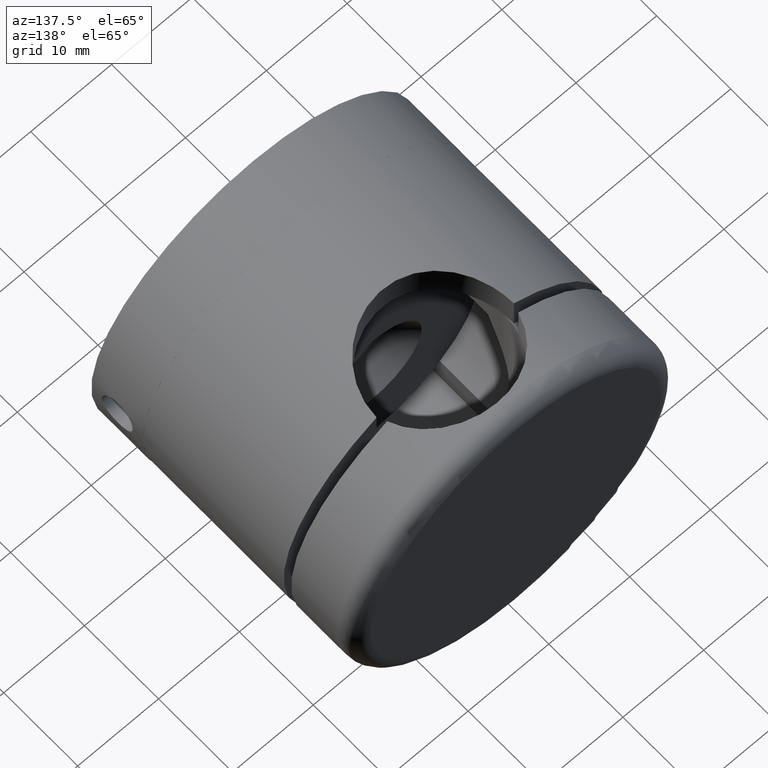
[diagram: clean part render]
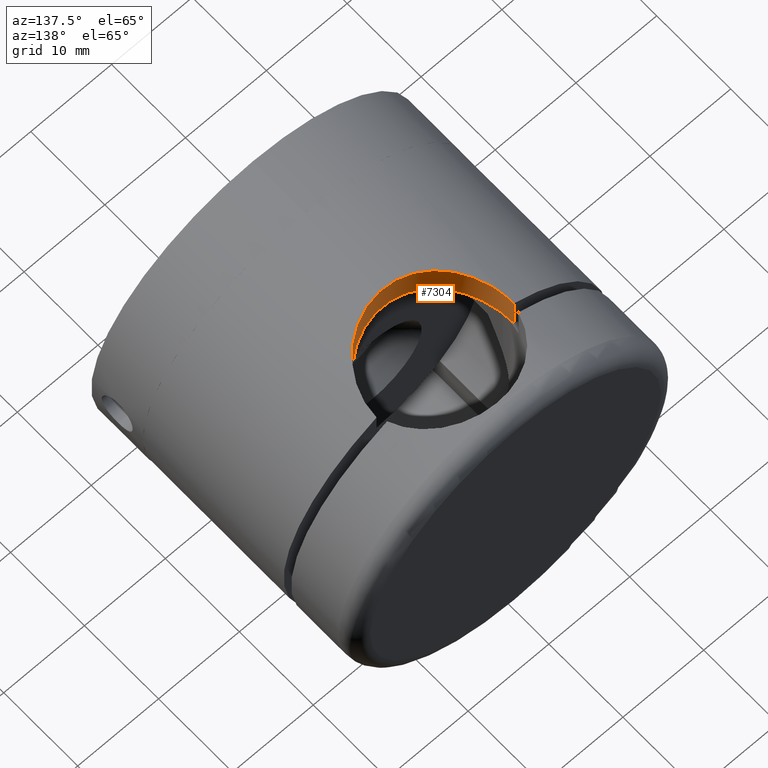
[diagram: same view with one face highlighted and labeled with its STEP entity id]
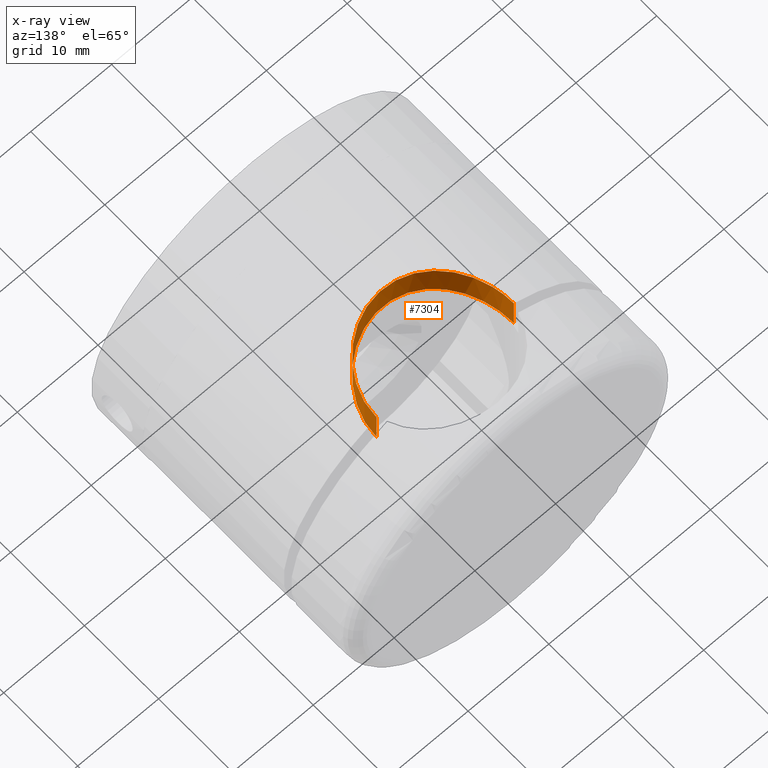
[diagram: x-ray of the same camera — body ghosted, the highlighted face saturated]
A machine part, auxiliary view. The second image highlights one B-rep face of the part: STEP entity #7304.
The next image is the same camera in x-ray: the body ghosted, the highlighted face saturated — about 0% of this face is hidden behind the body in this view.
In plain terms, the highlighted cylindrical surface (partial cylindrical patch) has radius 8.5 mm, axis along (0, 0, 1).
Its self-contained STEP definition (entity closure, byte-faithful):
#52 = CARTESIAN_POINT ( 'NONE',  ( -7.363247620549483200, 4.282063424749966700, 14.49004335591300400 ) ) ;
#110 = CARTESIAN_POINT ( 'NONE',  ( 8.037232161873607300, 2.780470239866471300, 14.12354426583494900 ) ) ;
#135 = EDGE_CURVE ( 'NONE', #8917, #15975, #12271, .T. ) ;
#304 = CARTESIAN_POINT ( 'NONE',  ( 2.753392838117537900, 8.061242599061593200, 19.81651779843391000 ) ) ;
#359 = CARTESIAN_POINT ( 'NONE',  ( -5.616674669457480300, 6.385807022240634000, 19.19639362909833500 ) ) ;
#366 = ORIENTED_EDGE ( 'NONE', *, *, #135, .T. ) ;
#1293 = CARTESIAN_POINT ( 'NONE',  ( -3.044419932239369200, 7.940918235848546800, 15.96439565447294300 ) ) ;
#1351 = CARTESIAN_POINT ( 'NONE',  ( 7.361725829991794300, 4.284890509427121700, 14.49084663178017100 ) ) ;
#1402 = CARTESIAN_POINT ( 'NONE',  ( -1.140538446973511600, 8.441914083903276000, 16.21940800330598300 ) ) ;
#1574 = FACE_OUTER_BOUND ( 'NONE', #10168, .T. ) ;
#1600 = CARTESIAN_POINT ( 'NONE',  ( -8.443504392803626900, 1.126480023909546300, 18.13068840180294200 ) ) ;
#1638 = AXIS2_PLACEMENT_3D ( 'NONE', #5859, #5916, #8715 ) ;
#1664 = CARTESIAN_POINT ( 'NONE',  ( 5.190666803842775700, 6.753548389505045400, 19.32042313561154900 ) ) ;
#1753 = CARTESIAN_POINT ( 'NONE',  ( 8.273194718250765700, 1.970927600636225500, 13.98646029484137500 ) ) ;
#1828 = CARTESIAN_POINT ( 'NONE',  ( -0.5811602726622778800, 8.499076714267172200, 16.24951705099035900 ) ) ;
#2658 = CARTESIAN_POINT ( 'NONE',  ( 6.745047274279450300, 5.201887267279287700, 14.78796742522374100 ) ) ;
#2710 = CARTESIAN_POINT ( 'NONE',  ( -6.737869404444845500, 5.188985629009343900, 14.78849291981611600 ) ) ;
#2863 = LINE ( 'NONE', #12900, #12559 ) ;
#2908 = CARTESIAN_POINT ( 'NONE',  ( -6.206165936074286900, 5.814497440453420700, 19.01380104813869600 ) ) ;
#2966 = CARTESIAN_POINT ( 'NONE',  ( -1.954853601107585000, 8.276914111441602300, 19.90614902721538800 ) ) ;
#3026 = CARTESIAN_POINT ( 'NONE',  ( -5.819338631456798100, 6.201626722365890700, 19.13573682450517700 ) ) ;
#3081 = CARTESIAN_POINT ( 'NONE',  ( -8.210138975111052100, 2.218660727988630600, 18.23737106346649400 ) ) ;
#3145 = CARTESIAN_POINT ( 'NONE',  ( -8.045823084360817400, 2.755642994243488800, 18.31045647143646300 ) ) ;
#3318 = CARTESIAN_POINT ( 'NONE',  ( -8.500000000000019500, 0.0000000000000000000, 13.84963898446453000 ) ) ;
#3366 = DIRECTION ( 'NONE',  ( -0.0000000000000000000, -0.0000000000000000000, 1.000000000000000000 ) ) ;
#3544 = CARTESIAN_POINT ( 'NONE',  ( -8.499999999999976900, -7.640860524588816100E-007, 18.10386699023168300 ) ) ;
#3879 = VECTOR ( 'NONE', #12612, 1000.000000000000000 ) ;
#3962 = CARTESIAN_POINT ( 'NONE',  ( 1.123044246282169000, 8.430272554987556800, 16.21361837249518300 ) ) ;
#4046 = ORIENTED_EDGE ( 'NONE', *, *, #17154, .F. ) ;
#4069 = CARTESIAN_POINT ( 'NONE',  ( 7.622130831201384500, 3.802159861847044500, 14.35357052392691400 ) ) ;
#4185 = CARTESIAN_POINT ( 'NONE',  ( -8.500000000000017800, 0.5731209837496423800, 13.84963898446453500 ) ) ;
#4380 = CARTESIAN_POINT ( 'NONE',  ( 5.622398032431254600, 6.398427425956961100, 19.19776565219189000 ) ) ;
#4921 = LINE ( 'NONE', #11275, #3879 ) ;
#5286 = CARTESIAN_POINT ( 'NONE',  ( 2.225298934138365300, 8.208347937911199200, 16.09920561088535600 ) ) ;
#5287 = VERTEX_POINT ( 'NONE', #3544 ) ;
#5310 = EDGE_CURVE ( 'NONE', #15975, #9986, #2863, .T. ) ;
#5393 = CARTESIAN_POINT ( 'NONE',  ( -5.824376552488693900, 6.196819399890648200, 15.17174645156503100 ) ) ;
#5643 = CARTESIAN_POINT ( 'NONE',  ( 0.2700035788042928800, 8.500360260938855100, 20.00015311079070900 ) ) ;
#5820 = CARTESIAN_POINT ( 'NONE',  ( -8.278582317476589100, 1.947564050719388500, 18.20628275902045000 ) ) ;
#5859 = CARTESIAN_POINT ( 'NONE',  ( -1.734723475976807100E-015, -1.409462824231155800E-015, -20.00000000000000000 ) ) ;
#5916 = DIRECTION ( 'NONE',  ( -0.0000000000000000000, -0.0000000000000000000, 1.000000000000000000 ) ) ;
#5992 = CARTESIAN_POINT ( 'NONE',  ( 8.054230834799327000, 2.772038597933519800, 18.30800494892374900 ) ) ;
#6056 = CARTESIAN_POINT ( 'NONE',  ( 7.208519383226655600, 4.512589016648896700, 18.65648238033653100 ) ) ;
#6636 = CARTESIAN_POINT ( 'NONE',  ( 4.287746782987045300, 7.359925613768137300, 15.68138918018726900 ) ) ;
#6692 = CARTESIAN_POINT ( 'NONE',  ( 0.5575894543927689700, 8.486449064881840700, 16.24289823610216700 ) ) ;
#6741 = CARTESIAN_POINT ( 'NONE',  ( 7.942310987657078800, 3.040644780484841500, 14.17734239812473600 ) ) ;
#6808 = CARTESIAN_POINT ( 'NONE',  ( -4.292819007088092500, 7.356973236554203800, 15.67999772823250400 ) ) ;
#6956 = CARTESIAN_POINT ( 'NONE',  ( -3.792924332163200200, 7.626909156474877900, 19.64386190272265900 ) ) ;
#7015 = CARTESIAN_POINT ( 'NONE',  ( 2.217916397446996900, 8.224574964739028700, 19.88425700137152700 ) ) ;
#7078 = CARTESIAN_POINT ( 'NONE',  ( -2.230110781636494500, 8.207022693539146400, 19.87711169744659400 ) ) ;
#7145 = CARTESIAN_POINT ( 'NONE',  ( -8.499999999999976900, -7.640860524588816100E-007, 18.10386699023168300 ) ) ;
#7304 = ADVANCED_FACE ( 'NONE', ( #1574 ), #8331, .F. ) ;
#7443 = CARTESIAN_POINT ( 'NONE',  ( 7.615662243335549400, 3.785293642352602500, 18.49382992713587000 ) ) ;
#7767 = B_SPLINE_CURVE_WITH_KNOTS ( 'NONE', 3,
 ( #7145, #16514, #1600, #5820, #3081, #3145, #11214, #16336, #11044, #15259, #15143, #8447, #2908, #3026, #359, #9620, #12437, #13673, #6956, #11161, #8333, #7078, #2966, #12378, #13726, #5643, #9796, #8391, #15081, #7015, #304, #16395, #9731, #1664, #4380, #16460, #12666, #6056, #9916, #7443, #12733, #5992, #8631, #11342, #13960, #12858 ),
 .UNSPECIFIED., .F., .F.,
 ( 4, 2, 2, 2, 2, 2, 2, 2, 2, 2, 2, 2, 2, 2, 2, 2, 2, 2, 2, 2, 2, 2, 4 ),
 ( 0.0000000000000000000, 0.001680255682291566200, 0.002520383523437350100, 0.003360511364583133700, 0.005040767046874703600, 0.005880894888020487200, 0.006721022729166270000, 0.007561150570312055400, 0.008401278411457839900, 0.01008153409374940700, 0.01092166193489518600, 0.01176178977604096900, 0.01344204545833253500, 0.01428217329947831800, 0.01512230114062410200, 0.01680255682291566600, 0.01848281250520723100, 0.02016306818749879400, 0.02184332386979035600, 0.02268345171093613700, 0.02352357955208191800, 0.02520383523437347300, 0.02688409091666502800 ),
 .UNSPECIFIED. ) ;
#8011 = CARTESIAN_POINT ( 'NONE',  ( -8.500000000000019500, 0.0000000000000000000, 13.84963898446453000 ) ) ;
#8129 = CARTESIAN_POINT ( 'NONE',  ( 8.500000000000012400, 2.400058654795349200E-007, 13.84963898446453500 ) ) ;
#8192 = CARTESIAN_POINT ( 'NONE',  ( -2.243177577798439100, 8.203522152921928900, 16.09674183350508500 ) ) ;
#8331 = CYLINDRICAL_SURFACE ( 'NONE', #1638, 8.500000000000017800 ) ;
#8333 = CARTESIAN_POINT ( 'NONE',  ( -2.766115245539234800, 8.042214995822563500, 19.80963326211606200 ) ) ;
#8391 = CARTESIAN_POINT ( 'NONE',  ( 1.117525003387913800, 8.430967665273341200, 19.97074310302638600 ) ) ;
#8447 = CARTESIAN_POINT ( 'NONE',  ( -6.390329171489912400, 5.611549420071636300, 18.95251866707256000 ) ) ;
#8631 = CARTESIAN_POINT ( 'NONE',  ( 8.218643597551031000, 2.241379830583992000, 18.23373642608345300 ) ) ;
#8715 = DIRECTION ( 'NONE',  ( 1.000000000000000000, 0.0000000000000000000, 0.0000000000000000000 ) ) ;
#8917 = VERTEX_POINT ( 'NONE', #3318 ) ;
#9303 = CARTESIAN_POINT ( 'NONE',  ( -2.782300295503275400, 8.036692505294755800, 16.01236236055419900 ) ) ;
#9365 = CARTESIAN_POINT ( 'NONE',  ( -8.220499268797757600, 2.233354074249762200, 14.01793960798715400 ) ) ;
#9421 = CARTESIAN_POINT ( 'NONE',  ( 3.028905845787061700, 7.946945267864135700, 15.96739121292461900 ) ) ;
#9478 = CARTESIAN_POINT ( 'NONE',  ( 0.2700833509574933600, 8.500445167631847100, 16.25023285669385200 ) ) ;
#9534 = CARTESIAN_POINT ( 'NONE',  ( 8.202525328433028000, 2.246484768489038300, 14.02819238851782300 ) ) ;
#9620 = CARTESIAN_POINT ( 'NONE',  ( -5.192332462970369100, 6.735372986094174200, 19.31549239081926200 ) ) ;
#9731 = CARTESIAN_POINT ( 'NONE',  ( 4.275568023860976100, 7.367018107161071900, 19.54331829759027900 ) ) ;
#9796 = CARTESIAN_POINT ( 'NONE',  ( 0.5543076619291984500, 8.486626003424937900, 19.99430381974326200 ) ) ;
#9916 = CARTESIAN_POINT ( 'NONE',  ( 7.352998448923449000, 4.273192386674287100, 18.59982447735791700 ) ) ;
#9986 = VERTEX_POINT ( 'NONE', #15452 ) ;
#10118 = EDGE_CURVE ( 'NONE', #5287, #9986, #7767, .T. ) ;
#10168 = EDGE_LOOP ( 'NONE', ( #4046, #366, #14577, #12727 ) ) ;
#10684 = CARTESIAN_POINT ( 'NONE',  ( -4.977968416968439900, 6.895336684848163400, 15.47059667194233200 ) ) ;
#10739 = CARTESIAN_POINT ( 'NONE',  ( 5.619482256923998200, 6.383330962864746100, 15.24908050084985500 ) ) ;
#10784 = CARTESIAN_POINT ( 'NONE',  ( 1.953247837865440100, 8.277308524747018800, 16.13456155015392600 ) ) ;
#10837 = CARTESIAN_POINT ( 'NONE',  ( 5.195497587691990700, 6.732926543015164400, 15.39869610628022700 ) ) ;
#11044 = CARTESIAN_POINT ( 'NONE',  ( -7.367986938638447100, 4.274140942728061900, 18.59626277504554200 ) ) ;
#11133 = CARTESIAN_POINT ( 'NONE',  ( 8.442547272911296500, 1.137814289251726500, 13.88535866464112100 ) ) ;
#11161 = CARTESIAN_POINT ( 'NONE',  ( -3.027517355881631300, 7.947367062587124700, 19.77121733785059700 ) ) ;
#11214 = CARTESIAN_POINT ( 'NONE',  ( -7.950176894956530100, 3.020235415688145700, 18.35233586006516000 ) ) ;
#11275 = CARTESIAN_POINT ( 'NONE',  ( -8.499999999999976900, -7.640860524588816100E-007, -20.00000000000000000 ) ) ;
#11342 = CARTESIAN_POINT ( 'NONE',  ( 8.443153730019942000, 1.132714094449973400, 18.13086875278455800 ) ) ;
#12013 = CARTESIAN_POINT ( 'NONE',  ( -6.902502933459320600, 4.968030185834523500, 14.71213856813573900 ) ) ;
#12063 = CARTESIAN_POINT ( 'NONE',  ( 6.398413920312656000, 5.621972099360209400, 14.94303355618917300 ) ) ;
#12124 = CARTESIAN_POINT ( 'NONE',  ( -5.200290223917082100, 6.729194872686001400, 15.39706789353994100 ) ) ;
#12179 = CARTESIAN_POINT ( 'NONE',  ( 4.973135509228340500, 6.898821825910307100, 15.47215185359586100 ) ) ;
#12271 = B_SPLINE_CURVE_WITH_KNOTS ( 'NONE', 3,
 ( #8011, #4185, #17379, #9365, #13589, #14814, #52, #12013, #2710, #16257, #17325, #5393, #14871, #12124, #10684, #6808, #16086, #1293, #9303, #8192, #16195, #1402, #1828, #9478, #6692, #3962, #13469, #10784, #5286, #14705, #9421, #14755, #6636, #12179, #10837, #10739, #16031, #12063, #2658, #1351, #4069, #6741, #110, #9534, #1753, #11133, #13883, #12464 ),
 .UNSPECIFIED., .F., .F.,
 ( 4, 2, 2, 2, 2, 2, 2, 2, 2, 2, 2, 2, 2, 2, 2, 2, 2, 2, 2, 2, 2, 2, 2, 4 ),
 ( 0.0000000000000000000, 0.001691801818361255400, 0.003383603636722510900, 0.005075405455083767400, 0.005921306364264395000, 0.006767207273445021700, 0.007613108182625649400, 0.008459009091806276100, 0.01015081091016752800, 0.01099671181934815300, 0.01184261272852878000, 0.01353441454689003100, 0.01438031545607065800, 0.01522621636525128100, 0.01607211727443190800, 0.01691801818361253500, 0.01860982000197378800, 0.01945572091115441200, 0.02030162182033503500, 0.02199342363869628500, 0.02368522545705753500, 0.02453112636623815800, 0.02537702727541878500, 0.02706882909378002800 ),
 .UNSPECIFIED. ) ;
#12378 = CARTESIAN_POINT ( 'NONE',  ( -1.129531640534815700, 8.443293049089751500, 19.97571137794387000 ) ) ;
#12437 = CARTESIAN_POINT ( 'NONE',  ( -4.969679717966968700, 6.901402297819887900, 19.37417236130023900 ) ) ;
#12464 = CARTESIAN_POINT ( 'NONE',  ( 8.500000000000012400, 2.400058654795349200E-007, 13.84963898446453500 ) ) ;
#12559 = VECTOR ( 'NONE', #3366, 1000.000000000000000 ) ;
#12612 = DIRECTION ( 'NONE',  ( -0.0000000000000000000, -0.0000000000000000000, 1.000000000000000000 ) ) ;
#12666 = CARTESIAN_POINT ( 'NONE',  ( 6.746514283084108500, 5.199941379888799500, 18.83063703258042700 ) ) ;
#12727 = ORIENTED_EDGE ( 'NONE', *, *, #10118, .F. ) ;
#12733 = CARTESIAN_POINT ( 'NONE',  ( 7.734520903636313200, 3.536013924375792000, 18.44425672882279700 ) ) ;
#12858 = CARTESIAN_POINT ( 'NONE',  ( 8.500000000000012400, 2.400058654795349200E-007, 18.10386699023166600 ) ) ;
#12900 = CARTESIAN_POINT ( 'NONE',  ( 8.500000000000012400, 2.400058654795349200E-007, -20.00000000000000000 ) ) ;
#13469 = CARTESIAN_POINT ( 'NONE',  ( 1.402120189043193400, 8.388269935180510100, 16.19176681240527700 ) ) ;
#13589 = CARTESIAN_POINT ( 'NONE',  ( -8.052693399292122600, 2.776912854631172800, 14.11653343310046100 ) ) ;
#13673 = CARTESIAN_POINT ( 'NONE',  ( -4.278301563340943600, 7.365759732384487900, 19.54280482610629800 ) ) ;
#13726 = CARTESIAN_POINT ( 'NONE',  ( -0.5733452631142347300, 8.499257685382065800, 19.99968451650720500 ) ) ;
#13883 = CARTESIAN_POINT ( 'NONE',  ( 8.499999983804373800, 0.5735816947827635500, 13.84963899440435100 ) ) ;
#13960 = CARTESIAN_POINT ( 'NONE',  ( 8.499999983935236300, 0.5689472912127597800, 18.10386699777429000 ) ) ;
#14577 = ORIENTED_EDGE ( 'NONE', *, *, #5310, .T. ) ;
#14705 = CARTESIAN_POINT ( 'NONE',  ( 2.762464221162083800, 8.043489456876773900, 16.01577872208027000 ) ) ;
#14755 = CARTESIAN_POINT ( 'NONE',  ( 3.802623582357953900, 7.622525352085043300, 15.80759200409083800 ) ) ;
#14814 = CARTESIAN_POINT ( 'NONE',  ( -7.623959349269640900, 3.798994580925700000, 14.35261756584944900 ) ) ;
#14871 = CARTESIAN_POINT ( 'NONE',  ( -5.622895416904475100, 6.380292248643931100, 15.24781181880865200 ) ) ;
#15081 = CARTESIAN_POINT ( 'NONE',  ( 1.395348061086256100, 8.389350416605095600, 19.95316293721591800 ) ) ;
#15143 = CARTESIAN_POINT ( 'NONE',  ( -6.740060041460914400, 5.186268837170237200, 18.83098142379282800 ) ) ;
#15259 = CARTESIAN_POINT ( 'NONE',  ( -6.906301905464066400, 4.962798814393588400, 18.77045681842097500 ) ) ;
#15452 = CARTESIAN_POINT ( 'NONE',  ( 8.500000000000012400, 2.400058654795349200E-007, 18.10386699023166600 ) ) ;
#15975 = VERTEX_POINT ( 'NONE', #8129 ) ;
#16031 = CARTESIAN_POINT ( 'NONE',  ( 5.821408959818793200, 6.199618171141711500, 15.17288900841903200 ) ) ;
#16086 = CARTESIAN_POINT ( 'NONE',  ( -3.809983900521940000, 7.618446251484360100, 15.80563848831322300 ) ) ;
#16195 = CARTESIAN_POINT ( 'NONE',  ( -1.967839219327221600, 8.273862105699803800, 16.13279237418496200 ) ) ;
#16257 = CARTESIAN_POINT ( 'NONE',  ( -6.391186815282856600, 5.610453373977368800, 14.94159088059100100 ) ) ;
#16336 = CARTESIAN_POINT ( 'NONE',  ( -7.629004903843887000, 3.789039810589934600, 18.48925257829700200 ) ) ;
#16395 = CARTESIAN_POINT ( 'NONE',  ( 3.789111081022709500, 7.629380156840602100, 19.64480050782690400 ) ) ;
#16460 = CARTESIAN_POINT ( 'NONE',  ( 6.398574892846969700, 5.622230207040033200, 18.95320038970183100 ) ) ;
#16514 = CARTESIAN_POINT ( 'NONE',  ( -8.500000000000019500, 0.5687659857117053400, 18.10386699023166600 ) ) ;
#17154 = EDGE_CURVE ( 'NONE', #8917, #5287, #4921, .T. ) ;
#17325 = CARTESIAN_POINT ( 'NONE',  ( -6.208522829451255600, 5.811899618560506300, 15.01863831683614200 ) ) ;
#17379 = CARTESIAN_POINT ( 'NONE',  ( -8.442659651962181000, 1.134009105079109500, 13.88527050808190900 ) ) ;